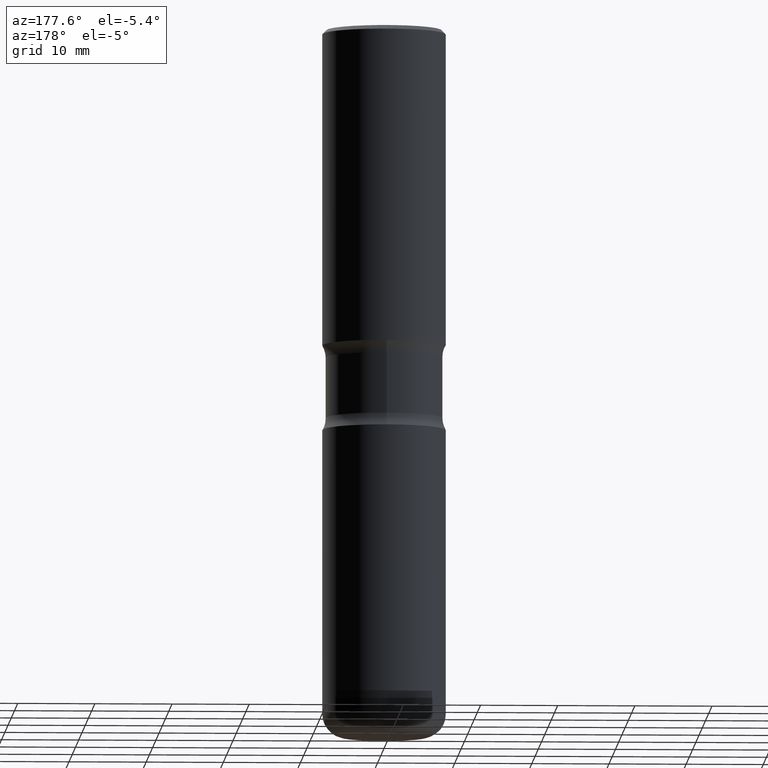
[diagram: clean part render]
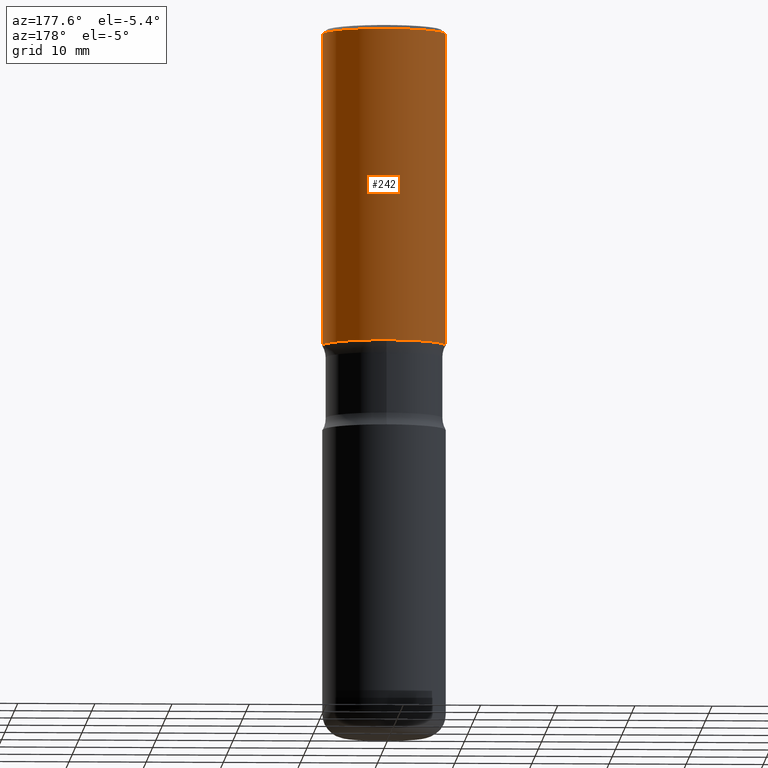
[diagram: same view with one face highlighted and labeled with its STEP entity id]
A machine part, auxiliary view. The second image highlights one B-rep face of the part: STEP entity #242.
In plain terms, the highlighted cylindrical surface (partial cylindrical patch) has radius 7.9997 mm, axis along (-0, 0, 1).
Its self-contained STEP definition (entity closure, byte-faithful):
#1 = AXIS2_PLACEMENT_3D ( 'NONE', #288, #77, #419 ) ;
#18 = EDGE_CURVE ( 'NONE', #247, #268, #459, .T. ) ;
#22 = VERTEX_POINT ( 'NONE', #83 ) ;
#35 = FACE_OUTER_BOUND ( 'NONE', #307, .T. ) ;
#39 = DIRECTION ( 'NONE',  ( -2.445468806185136877E-29, 3.491481338843145188E-15, 1.000000000000000000 ) ) ;
#45 = CARTESIAN_POINT ( 'NONE',  ( 0.3149500000000002853, -2.199284095337291843E-15, 1.535751875536931531E-29 ) ) ;
#59 = CARTESIAN_POINT ( 'NONE',  ( -0.3149500000000001743, 2.129454468560427756E-15, -0.02000000000000006981 ) ) ;
#73 = CIRCLE ( 'NONE', #193, 0.3149500000000003408 ) ;
#77 = DIRECTION ( 'NONE',  ( -2.445468806185136597E-29, 3.491481338843145583E-15, 1.000000000000000000 ) ) ;
#83 = CARTESIAN_POINT ( 'NONE',  ( -0.3149500000000003408, -6.148604816253523528E-16, -1.614099999999999424 ) ) ;
#93 = CARTESIAN_POINT ( 'NONE',  ( 3.947231200063427485E-29, -5.635600029026719491E-15, -1.614099999999999424 ) ) ;
#117 = CARTESIAN_POINT ( 'NONE',  ( 0.3149500000000001743, -2.230543471175008239E-15, -0.02000000000000006981 ) ) ;
#120 = AXIS2_PLACEMENT_3D ( 'NONE', #314, #444, #157 ) ;
#131 = ORIENTED_EDGE ( 'NONE', *, *, #493, .F. ) ;
#146 = EDGE_CURVE ( 'NONE', #22, #268, #327, .T. ) ;
#156 = VERTEX_POINT ( 'NONE', #289 ) ;
#157 = DIRECTION ( 'NONE',  ( 1.000000000000000000, -6.982962677686267499E-15, 4.876176775795936353E-29 ) ) ;
#193 = AXIS2_PLACEMENT_3D ( 'NONE', #93, #519, #342 ) ;
#194 = VECTOR ( 'NONE', #39, 39.37007874015748143 ) ;
#222 = ORIENTED_EDGE ( 'NONE', *, *, #18, .F. ) ;
#242 = ADVANCED_FACE ( 'NONE', ( #35 ), #492, .T. ) ;
#247 = VERTEX_POINT ( 'NONE', #117 ) ;
#268 = VERTEX_POINT ( 'NONE', #59 ) ;
#269 = ORIENTED_EDGE ( 'NONE', *, *, #529, .T. ) ;
#288 = CARTESIAN_POINT ( 'NONE',  ( 4.890937612370289799E-31, -6.982962677686315028E-17, -0.02000000000000006981 ) ) ;
#289 = CARTESIAN_POINT ( 'NONE',  ( 0.3149500000000003408, -7.834884124364010939E-15, -1.614099999999999424 ) ) ;
#307 = EDGE_LOOP ( 'NONE', ( #269, #535, #222, #131 ) ) ;
#314 = CARTESIAN_POINT ( 'NONE',  ( 0.000000000000000000, 0.000000000000000000, 0.000000000000000000 ) ) ;
#327 = LINE ( 'NONE', #415, #194 ) ;
#342 = DIRECTION ( 'NONE',  ( 1.000000000000000000, -6.982962677686265922E-15, 0.000000000000000000 ) ) ;
#415 = CARTESIAN_POINT ( 'NONE',  ( -0.3149500000000002853, 2.237854346276437562E-15, -1.549218606675783797E-29 ) ) ;
#419 = DIRECTION ( 'NONE',  ( 1.000000000000000000, -6.982962677686265922E-15, 0.000000000000000000 ) ) ;
#444 = DIRECTION ( 'NONE',  ( -2.445468806185136597E-29, 3.491481338843145583E-15, 1.000000000000000000 ) ) ;
#459 = CIRCLE ( 'NONE', #1, 0.3149500000000001743 ) ;
#492 = CYLINDRICAL_SURFACE ( 'NONE', #120, 0.3149500000000002853 ) ;
#493 = EDGE_CURVE ( 'NONE', #156, #247, #552, .T. ) ;
#518 = VECTOR ( 'NONE', #555, 39.37007874015748143 ) ;
#519 = DIRECTION ( 'NONE',  ( -2.445468806185136597E-29, 3.491481338843145583E-15, 1.000000000000000000 ) ) ;
#529 = EDGE_CURVE ( 'NONE', #156, #22, #73, .T. ) ;
#535 = ORIENTED_EDGE ( 'NONE', *, *, #146, .T. ) ;
#552 = LINE ( 'NONE', #45, #518 ) ;
#555 = DIRECTION ( 'NONE',  ( -2.445468806185136877E-29, 3.491481338843145188E-15, 1.000000000000000000 ) ) ;